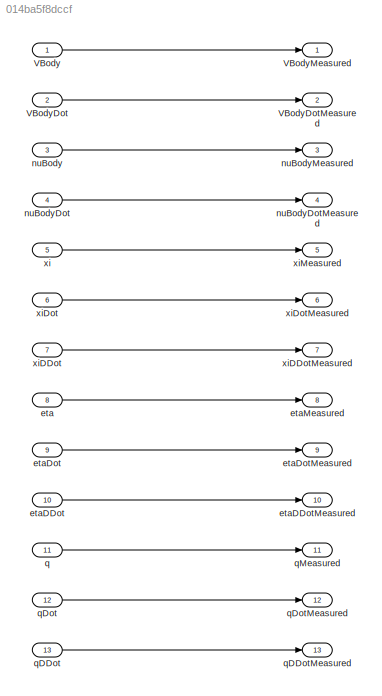
MODEL slx_014ba5f8dccf
KIND model
CONFIG AbsTol = auto
CONFIG EnableMultiTasking = on
CONFIG FixedStep = auto
CONFIG MaxStep = auto
CONFIG MinStep = auto
CONFIG RelTol = 1e-3
CONFIG SampleTimeConstraint = Unconstrained
CONFIG SolverName = VariableStepAuto
CONFIG StartTime = 0.0
CONFIG StopTime = 10.0
BLOCK [Inport] VBody
  PortDimensions = 3
BLOCK [Inport] VBodyDot
  Port = 2
  PortDimensions = 3
BLOCK [Outport] VBodyDotMeasured
  Port = 2
  VectorParamsAs1DForOutWhenUnconnected = off
BLOCK [Outport] VBodyMeasured
  VectorParamsAs1DForOutWhenUnconnected = off
BLOCK [Inport] eta
  Port = 8
  PortDimensions = 3
BLOCK [Inport] etaDDot
  Port = 10
  PortDimensions = 3
BLOCK [Outport] etaDDotMeasured
  Port = 10
  VectorParamsAs1DForOutWhenUnconnected = off
BLOCK [Inport] etaDot
  Port = 9
  PortDimensions = 3
BLOCK [Outport] etaDotMeasured
  Port = 9
  VectorParamsAs1DForOutWhenUnconnected = off
BLOCK [Outport] etaMeasured
  Port = 8
  VectorParamsAs1DForOutWhenUnconnected = off
BLOCK [Inport] nuBody
  Port = 3
  PortDimensions = 3
BLOCK [Inport] nuBodyDot
  Port = 4
  PortDimensions = 3
BLOCK [Outport] nuBodyDotMeasured
  Port = 4
  VectorParamsAs1DForOutWhenUnconnected = off
BLOCK [Outport] nuBodyMeasured
  Port = 3
  VectorParamsAs1DForOutWhenUnconnected = off
BLOCK [Inport] q
  Port = 11
  PortDimensions = 4
BLOCK [Inport] qDDot
  Port = 13
  PortDimensions = 4
BLOCK [Outport] qDDotMeasured
  Port = 13
  VectorParamsAs1DForOutWhenUnconnected = off
BLOCK [Inport] qDot
  Port = 12
  PortDimensions = 4
BLOCK [Outport] qDotMeasured
  Port = 12
  VectorParamsAs1DForOutWhenUnconnected = off
BLOCK [Outport] qMeasured
  Port = 11
  VectorParamsAs1DForOutWhenUnconnected = off
BLOCK [Inport] xi
  Port = 5
  PortDimensions = 3
BLOCK [Inport] xiDDot
  Port = 7
  PortDimensions = 3
BLOCK [Outport] xiDDotMeasured
  Port = 7
  VectorParamsAs1DForOutWhenUnconnected = off
BLOCK [Inport] xiDot
  Port = 6
  PortDimensions = 3
BLOCK [Outport] xiDotMeasured
  Port = 6
  VectorParamsAs1DForOutWhenUnconnected = off
BLOCK [Outport] xiMeasured
  Port = 5
  VectorParamsAs1DForOutWhenUnconnected = off
LINE VBody:1 -> VBodyMeasured:1
LINE VBodyDot:1 -> VBodyDotMeasured:1
LINE eta:1 -> etaMeasured:1
LINE etaDDot:1 -> etaDDotMeasured:1
LINE etaDot:1 -> etaDotMeasured:1
LINE nuBody:1 -> nuBodyMeasured:1
LINE nuBodyDot:1 -> nuBodyDotMeasured:1
LINE q:1 -> qMeasured:1
LINE qDDot:1 -> qDDotMeasured:1
LINE qDot:1 -> qDotMeasured:1
LINE xi:1 -> xiMeasured:1
LINE xiDDot:1 -> xiDDotMeasured:1
LINE xiDot:1 -> xiDotMeasured:1
